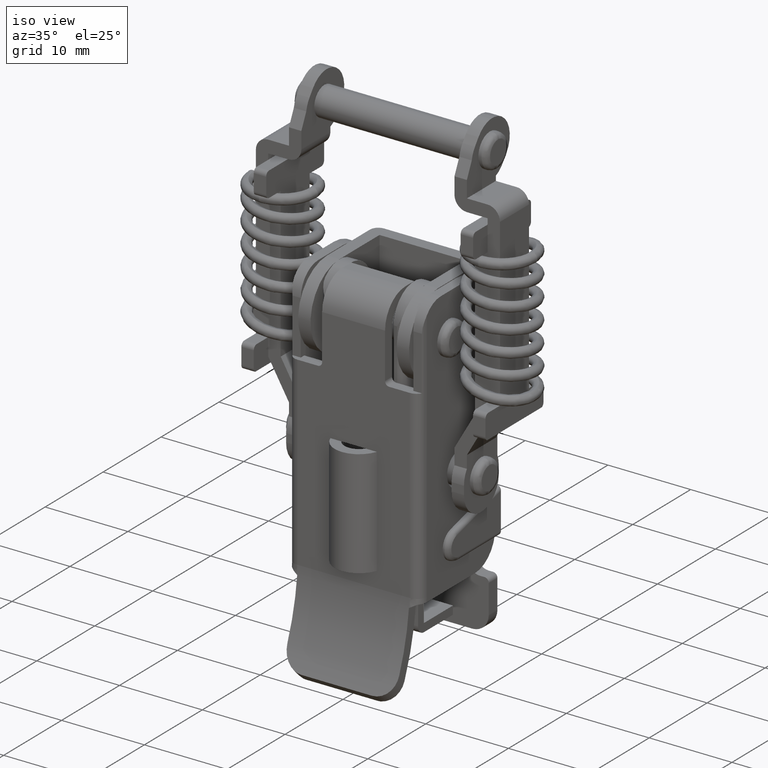
[diagram: clean part render]
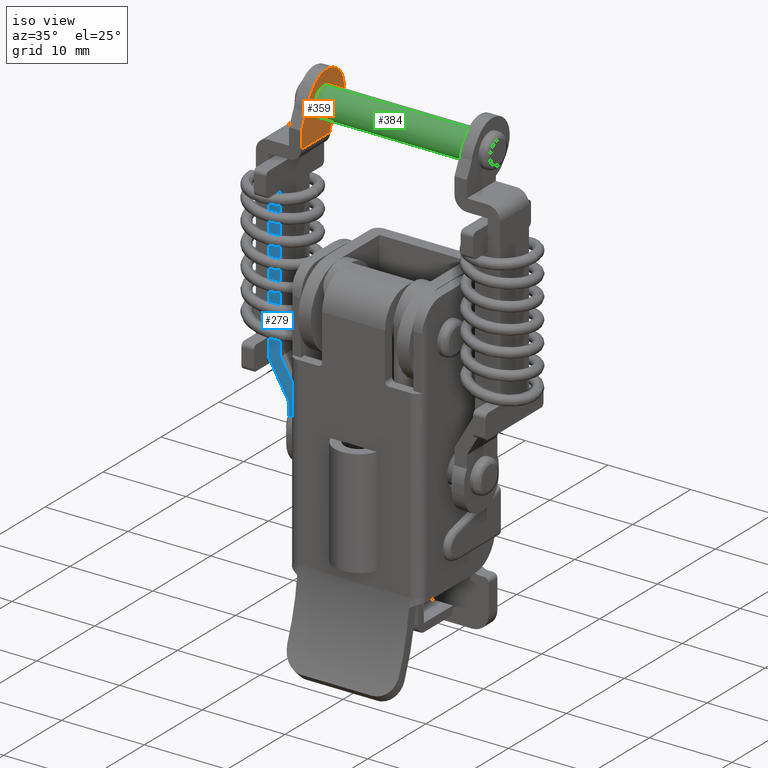
[diagram: same view with three faces highlighted in distinct colors, each labeled with its STEP entity id]
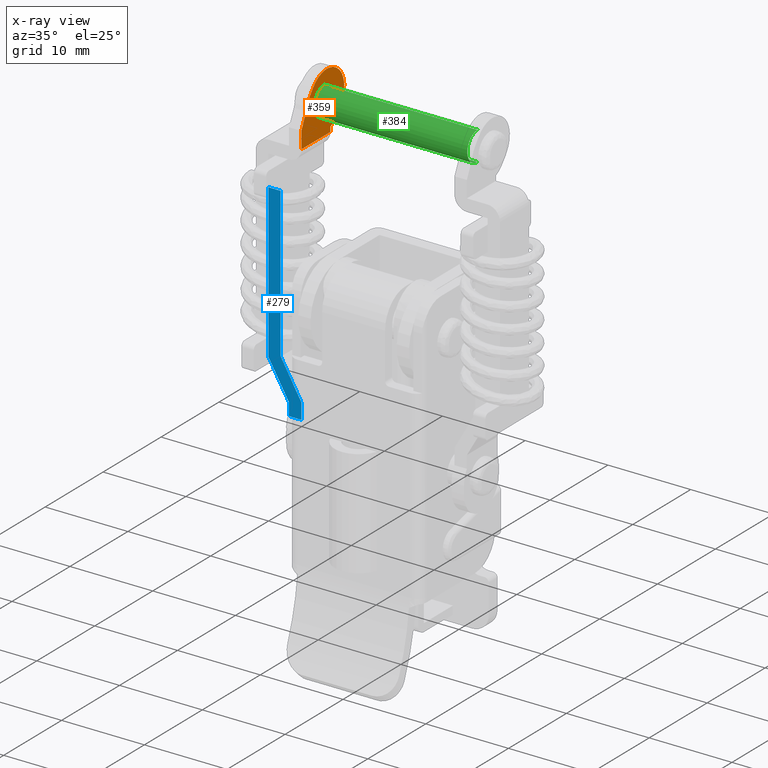
[diagram: x-ray of the same camera — body ghosted, the three highlighted faces saturated]
A machine part, iso view with three faces highlighted in distinct colors.
The next image is the same camera in x-ray (body ghosted, the three faces saturated) — at least one of them is partly hidden behind the body in this view.
Their STEP definitions:

[orange] entity #359 — the highlighted planar face has unit normal (-1, 0, 0).
#359=ADVANCED_FACE('',(#1546,#1547),#1545,.F.);
#1545=PLANE('',#4924);
#1546=FACE_OUTER_BOUND('',#4925,.T.);
#1547=FACE_BOUND('',#4926,.T.);
#4921=CARTESIAN_POINT('',(-9.25000000000E+00,-4.75682013095E+00,-4.51264886270E+00));
#4922=DIRECTION('',(-1.00000000000E+00,0.00000000000E+00,0.00000000000E+00));
#4923=DIRECTION('',(0.00000000000E+00,0.00000000000E+00,1.00000000000E+00));
#4924=AXIS2_PLACEMENT_3D('',#4921,#4922,#4923);
#4925=EDGE_LOOP('',(#8316,#8317,#8318,#8319,#8320,#8321,#8322,#8323,#8324,#8325,#8326));
#4926=EDGE_LOOP('',(#8327,#8328));
#8316=ORIENTED_EDGE('',*,*,#10080,.F.);
#8317=ORIENTED_EDGE('',*,*,#10121,.F.);
#8318=ORIENTED_EDGE('',*,*,#10108,.F.);
#8319=ORIENTED_EDGE('',*,*,#10103,.T.);
#8320=ORIENTED_EDGE('',*,*,#10101,.F.);
#8321=ORIENTED_EDGE('',*,*,#10097,.T.);
#8322=ORIENTED_EDGE('',*,*,#10122,.T.);
#8323=ORIENTED_EDGE('',*,*,#10123,.T.);
#8324=ORIENTED_EDGE('',*,*,#10094,.F.);
#8325=ORIENTED_EDGE('',*,*,#10090,.T.);
#8326=ORIENTED_EDGE('',*,*,#10088,.F.);
#8327=ORIENTED_EDGE('',*,*,#10124,.T.);
#8328=ORIENTED_EDGE('',*,*,#10125,.T.);
#10080=EDGE_CURVE('',#12426,#12433,#12434,.T.);
#10088=EDGE_CURVE('',#12433,#12487,#12488,.T.);
#10090=EDGE_CURVE('',#12500,#12487,#12501,.T.);
#10094=EDGE_CURVE('',#12500,#12527,#12528,.T.);
#10097=EDGE_CURVE('',#12548,#12540,#12549,.T.);
#10101=EDGE_CURVE('',#12548,#12575,#12576,.T.);
#10103=EDGE_CURVE('',#12588,#12575,#12589,.T.);
#10108=EDGE_CURVE('',#12588,#12622,#12623,.T.);
#10121=EDGE_CURVE('',#12622,#12426,#12706,.T.);
#10122=EDGE_CURVE('',#12540,#12712,#12713,.T.);
#10123=EDGE_CURVE('',#12712,#12527,#12719,.T.);
#10124=EDGE_CURVE('',#12725,#12726,#12727,.T.);
#10125=EDGE_CURVE('',#12726,#12725,#12733,.T.);
#12426=VERTEX_POINT('',#18505);
#12433=VERTEX_POINT('',#18510);
#12434=LINE('',#18511,#18512);
#12487=VERTEX_POINT('',#18541);
#12488=LINE('',#18542,#18543);
#12500=VERTEX_POINT('',#18548);
#12501=CIRCLE('',#18552,3.00000000000E+00);
#12527=VERTEX_POINT('',#18565);
#12528=LINE('',#18566,#18567);
#12540=VERTEX_POINT('',#18572);
#12548=VERTEX_POINT('',#18577);
#12549=CIRCLE('',#18581,3.00000000000E+00);
#12575=VERTEX_POINT('',#18594);
#12576=LINE('',#18595,#18596);
#12588=VERTEX_POINT('',#18601);
#12589=CIRCLE('',#18605,3.00000000000E+00);
#12622=VERTEX_POINT('',#18622);
#12623=LINE('',#18623,#18624);
#12706=LINE('',#18671,#18672);
#12712=VERTEX_POINT('',#18674);
#12713=LINE('',#18675,#18676);
#12719=CIRCLE('',#18681,3.00000000000E+00);
#12725=VERTEX_POINT('',#18682);
#12726=VERTEX_POINT('',#18683);
#12727=CIRCLE('',#18687,1.74999999999E+00);
#12733=CIRCLE('',#18691,1.74999999999E+00);
#18505=CARTESIAN_POINT('',(-9.24999700000E+00,-3.97084548674E+00,-3.80240805700E+00));
#18510=CARTESIAN_POINT('',(-9.25000000000E+00,-3.97098613539E+00,-1.78776197047E+00));
#18511=CARTESIAN_POINT('',(-9.25000000000E+00,-3.97084548674E+00,-3.80240805700E+00));
#18512=VECTOR('',#18513,2.01464609144E+00);
#18513=DIRECTION('',(0.00000000000E+00,-6.98130791695E-05,9.99999997563E-01));
#18541=CARTESIAN_POINT('',(-9.25000000000E+00,-3.12394639134E+00,2.61355118856E-02));
#18542=CARTESIAN_POINT('',(-9.25000000000E+00,-3.97098613539E+00,-1.78776197047E+00));
#18543=VECTOR('',#18544,2.00192417552E+00);
#18544=DIRECTION('',(0.00000000000E+00,4.23112800381E-01,9.06077015575E-01));
#18548=CARTESIAN_POINT('',(-9.25000000000E+00,-2.56375678982E+00,1.32077598000E+00));
#18549=CARTESIAN_POINT('',(-9.25000000000E+00,-1.67724221747E-01,-4.84501819331E-01));
#18550=DIRECTION('',(1.00000000000E+00,0.00000000000E+00,-0.00000000000E+00));
#18551=DIRECTION('',(-0.00000000000E+00,-0.00000000000E+00,-1.00000000000E+00));
#18552=AXIS2_PLACEMENT_3D('',#18549,#18550,#18551);
#18565=CARTESIAN_POINT('',(-9.25000000000E+00,-1.96199752338E+00,2.11945350268E+00));
#18566=CARTESIAN_POINT('',(-9.25000000000E+00,-2.56375678982E+00,1.32077598000E+00));
#18567=VECTOR('',#18568,9.99999999991E-01);
#18568=DIRECTION('',(0.00000000000E+00,6.01759266443E-01,7.98677522690E-01));
#18572=CARTESIAN_POINT('',(-9.25000000000E+00,7.25330890078E-01,3.30000000000E+00));
#18577=CARTESIAN_POINT('',(-9.25000000000E+00,2.83006761276E+00,-1.49110209598E+00));
#18578=CARTESIAN_POINT('',(-9.25000000000E+00,4.34035044691E-01,3.14175703351E-01));
#18579=DIRECTION('',(1.00000000000E+00,0.00000000000E+00,-0.00000000000E+00));
#18580=DIRECTION('',(-0.00000000000E+00,-0.00000000000E+00,-1.00000000000E+00));
#18581=AXIS2_PLACEMENT_3D('',#18578,#18579,#18580);
#18594=CARTESIAN_POINT('',(-9.25000000000E+00,2.22830834632E+00,-2.28977961866E+00));
#18595=CARTESIAN_POINT('',(-9.25000000000E+00,2.83006761276E+00,-1.49110209598E+00));
#18596=VECTOR('',#18597,9.99999999991E-01);
#18597=DIRECTION('',(0.00000000000E+00,-6.01759266444E-01,-7.98677522689E-01));
#18601=CARTESIAN_POINT('',(-9.25000000000E+00,1.02911494195E+00,-3.23542457656E+00));
#18602=CARTESIAN_POINT('',(-9.25000000000E+00,-1.67724221747E-01,-4.84501819331E-01));
#18603=DIRECTION('',(1.00000000000E+00,0.00000000000E+00,-0.00000000000E+00));
#18604=DIRECTION('',(-0.00000000000E+00,-0.00000000000E+00,-1.00000000000E+00));
#18605=AXIS2_PLACEMENT_3D('',#18602,#18603,#18604);
#18622=CARTESIAN_POINT('',(-9.24999700000E+00,1.02915452534E+00,-3.80240805700E+00));
#18623=CARTESIAN_POINT('',(-9.25000000000E+00,1.02911494195E+00,-3.23542457656E+00));
#18624=VECTOR('',#18625,5.66983481820E-01);
#18625=DIRECTION('',(0.00000000000E+00,6.98140223326E-05,-9.99999997563E-01));
#18671=CARTESIAN_POINT('',(-9.25000000000E+00,1.02915452534E+00,-3.80240805700E+00));
#18672=VECTOR('',#18673,5.00000001209E+00);
#18673=DIRECTION('',(0.00000000000E+00,-1.00000000000E+00,0.00000000000E+00));
#18674=CARTESIAN_POINT('',(-9.25000000000E+00,1.42739199303E-01,3.30000000000E+00));
#18675=CARTESIAN_POINT('',(-9.25000000000E+00,7.25330890078E-01,3.30000000000E+00));
#18676=VECTOR('',#18677,5.82591690776E-01);
#18677=DIRECTION('',(0.00000000000E+00,-1.00000000000E+00,0.00000000000E+00));
#18678=CARTESIAN_POINT('',(-9.25000000000E+00,4.34035044691E-01,3.14175703351E-01));
#18679=DIRECTION('',(1.00000000000E+00,0.00000000000E+00,-0.00000000000E+00));
#18680=DIRECTION('',(-0.00000000000E+00,-0.00000000000E+00,-1.00000000000E+00));
#18681=AXIS2_PLACEMENT_3D('',#18678,#18679,#18680);
#18682=CARTESIAN_POINT('',(-9.25000000000E+00,0.00000000000E+00,1.74999999999E+00));
#18683=CARTESIAN_POINT('',(-9.25000000000E+00,7.40148683083E-17,-1.74999999999E+00));
#18684=CARTESIAN_POINT('',(-9.25000000000E+00,0.00000000000E+00,0.00000000000E+00));
#18685=DIRECTION('',(-1.00000000000E+00,0.00000000000E+00,0.00000000000E+00));
#18686=DIRECTION('',(0.00000000000E+00,-1.22460635382E-16,1.00000000000E+00));
#18687=AXIS2_PLACEMENT_3D('',#18684,#18685,#18686);
#18688=CARTESIAN_POINT('',(-9.25000000000E+00,0.00000000000E+00,0.00000000000E+00));
#18689=DIRECTION('',(-1.00000000000E+00,0.00000000000E+00,0.00000000000E+00));
#18690=DIRECTION('',(0.00000000000E+00,-1.22460635382E-16,1.00000000000E+00));
#18691=AXIS2_PLACEMENT_3D('',#18688,#18689,#18690);

[blue] entity #279 — the highlighted planar face has unit normal (-0, -1, -0.0001).
#279=ADVANCED_FACE('',(#742),#741,.T.);
#741=PLANE('',#4436);
#742=FACE_OUTER_BOUND('',#4437,.T.);
#4433=CARTESIAN_POINT('',(-1.36500000000E+01,-2.50198507420E+00,2.84339941581E+01));
#4434=DIRECTION('',(0.00000000000E+00,-9.99999997563E-01,-6.98132062351E-05));
#4435=DIRECTION('',(0.00000000000E+00,6.98132062351E-05,-9.99999997563E-01));
#4436=AXIS2_PLACEMENT_3D('',#4433,#4434,#4435);
#4437=EDGE_LOOP('',(#7897,#7898,#7899,#7900,#7901,#7902,#7903,#7904));
#7897=ORIENTED_EDGE('',*,*,#9859,.T.);
#7898=ORIENTED_EDGE('',*,*,#9900,.F.);
#7899=ORIENTED_EDGE('',*,*,#9894,.T.);
#7900=ORIENTED_EDGE('',*,*,#9887,.T.);
#7901=ORIENTED_EDGE('',*,*,#9882,.T.);
#7902=ORIENTED_EDGE('',*,*,#9901,.T.);
#7903=ORIENTED_EDGE('',*,*,#9868,.T.);
#7904=ORIENTED_EDGE('',*,*,#9865,.T.);
#9859=EDGE_CURVE('',#10951,#10944,#10952,.T.);
#9865=EDGE_CURVE('',#10992,#10951,#10993,.T.);
#9868=EDGE_CURVE('',#11012,#10992,#11013,.T.);
#9882=EDGE_CURVE('',#11110,#11103,#11111,.T.);
#9887=EDGE_CURVE('',#11144,#11110,#11145,.T.);
#9894=EDGE_CURVE('',#11190,#11144,#11191,.T.);
#9900=EDGE_CURVE('',#11190,#10944,#11230,.T.);
#9901=EDGE_CURVE('',#11103,#11012,#11236,.T.);
#10944=VERTEX_POINT('',#17626);
#10951=VERTEX_POINT('',#17630);
#10952=LINE('',#17631,#17632);
#10992=VERTEX_POINT('',#17654);
#10993=LINE('',#17655,#17656);
#11012=VERTEX_POINT('',#17665);
#11013=LINE('',#17666,#17667);
#11103=VERTEX_POINT('',#17724);
#11110=VERTEX_POINT('',#17729);
#11111=LINE('',#17730,#17731);
#11144=VERTEX_POINT('',#17750);
#11145=LINE('',#17751,#17752);
#11190=VERTEX_POINT('',#17776);
#11191=LINE('',#17777,#17778);
#11230=LINE('',#17800,#17801);
#11236=LINE('',#17803,#17804);
#17626=CARTESIAN_POINT('',(-1.17500000000E+01,-2.50181513707E+00,2.59998254036E+01));
#17630=CARTESIAN_POINT('',(-1.17500000000E+01,-2.50055166453E+00,7.90192378800E+00));
#17631=CARTESIAN_POINT('',(-1.17500000000E+01,-2.50055166453E+00,7.90192378800E+00));
#17632=VECTOR('',#17633,1.80979016597E+01);
#17633=DIRECTION('',(0.00000000000E+00,-6.98132062351E-05,9.99999997563E-01));
#17654=CARTESIAN_POINT('',(-9.25000000000E+00,-2.50024936448E+00,3.57179676900E+00));
#17655=CARTESIAN_POINT('',(-9.25000000000E+00,-2.50024936448E+00,3.57179676900E+00));
#17656=VECTOR('',#17657,5.00000000921E+00);
#17657=DIRECTION('',(-4.99999999079E-01,-6.04600101564E-05,8.66025402205E-01));
#17665=CARTESIAN_POINT('',(-9.25000000000E+00,-2.50011576581E+00,1.65813785835E+00));
#17666=CARTESIAN_POINT('',(-9.25000000000E+00,-2.50011576581E+00,1.65813785835E+00));
#17667=VECTOR('',#17668,1.91365891531E+00);
#17668=DIRECTION('',(0.00000000000E+00,-6.98132062350E-05,9.99999997563E-01));
#17724=CARTESIAN_POINT('',(-1.07500000000E+01,-2.50011576581E+00,1.65813785835E+00));
#17729=CARTESIAN_POINT('',(-1.07500000000E+01,-2.50022130489E+00,3.16987298100E+00));
#17730=CARTESIAN_POINT('',(-1.07500000000E+01,-2.50022130489E+00,3.16987298100E+00));
#17731=VECTOR('',#17732,1.51173512633E+00);
#17732=DIRECTION('',(0.00000000000E+00,6.98132062349E-05,-9.99999997563E-01));
#17750=CARTESIAN_POINT('',(-1.32500000000E+01,-2.50052360494E+00,7.50000000000E+00));
#17751=CARTESIAN_POINT('',(-1.32500000000E+01,-2.50052360494E+00,7.50000000000E+00));
#17752=VECTOR('',#17753,5.00000000921E+00);
#17753=DIRECTION('',(4.99999999079E-01,6.04600101564E-05,-8.66025402205E-01));
#17776=CARTESIAN_POINT('',(-1.32500000000E+01,-2.50181513707E+00,2.59998254036E+01));
#17777=CARTESIAN_POINT('',(-1.32500000000E+01,-2.50181513707E+00,2.59998254036E+01));
#17778=VECTOR('',#17779,1.84998254486E+01);
#17779=DIRECTION('',(0.00000000000E+00,6.98132062351E-05,-9.99999997563E-01));
#17800=CARTESIAN_POINT('',(-1.32500000000E+01,-2.50181513707E+00,2.59998254036E+01));
#17801=VECTOR('',#17802,1.50000000000E+00);
#17802=DIRECTION('',(1.00000000000E+00,0.00000000000E+00,0.00000000000E+00));
#17803=CARTESIAN_POINT('',(-1.07500000000E+01,-2.50011576581E+00,1.65813785835E+00));
#17804=VECTOR('',#17805,1.50000000000E+00);
#17805=DIRECTION('',(1.00000000000E+00,0.00000000000E+00,0.00000000000E+00));

[green] entity #384 — the highlighted cylindrical surface (edge-blend (fillet) strip) has radius 1.75 mm, axis along (1, 0, 0).
#384=ADVANCED_FACE('',(#1798),#1797,.T.);
#1797=CYLINDRICAL_SURFACE('',#5051,1.74999999999E+00);
#1798=FACE_OUTER_BOUND('',#5052,.T.);
#5048=CARTESIAN_POINT('',(0.00000000000E+00,0.00000000000E+00,0.00000000000E+00));
#5049=DIRECTION('',(1.00000000000E+00,-0.00000000000E+00,-0.00000000000E+00));
#5050=DIRECTION('',(-0.00000000000E+00,-0.00000000000E+00,-1.00000000000E+00));
#5051=AXIS2_PLACEMENT_3D('',#5048,#5049,#5050);
#5052=EDGE_LOOP('',(#8455,#8456,#8457,#8458));
#8455=ORIENTED_EDGE('',*,*,#10125,.F.);
#8456=ORIENTED_EDGE('',*,*,#10163,.T.);
#8457=ORIENTED_EDGE('',*,*,#10030,.T.);
#8458=ORIENTED_EDGE('',*,*,#10164,.F.);
#10030=EDGE_CURVE('',#12093,#12094,#12095,.T.);
#10125=EDGE_CURVE('',#12726,#12725,#12733,.T.);
#10163=EDGE_CURVE('',#12726,#12093,#12978,.T.);
#10164=EDGE_CURVE('',#12725,#12094,#12984,.T.);
#12093=VERTEX_POINT('',#18300);
#12094=VERTEX_POINT('',#18301);
#12095=CIRCLE('',#18305,1.74999999999E+00);
#12725=VERTEX_POINT('',#18682);
#12726=VERTEX_POINT('',#18683);
#12733=CIRCLE('',#18691,1.74999999999E+00);
#12978=(BOUNDED_CURVE() B_SPLINE_CURVE(1,(#18827,#18828),.UNSPECIFIED.,.F.,.F.) B_SPLINE_CURVE_WITH_KNOTS((2,2),(8.33333328360E-02,9.16666665505E-01),.UNSPECIFIED.) CURVE() GEOMETRIC_REPRESENTATION_ITEM() RATIONAL_B_SPLINE_CURVE((1.00000000000E+00,1.00000000000E+00)) REPRESENTATION_ITEM('') );
#12984=(BOUNDED_CURVE() B_SPLINE_CURVE(1,(#18829,#18830),.UNSPECIFIED.,.F.,.F.) B_SPLINE_CURVE_WITH_KNOTS((2,2),(8.33333333333E-02,9.16666666667E-01),.UNSPECIFIED.) CURVE() GEOMETRIC_REPRESENTATION_ITEM() RATIONAL_B_SPLINE_CURVE((7.50000000000E-01,7.50000000000E-01)) REPRESENTATION_ITEM('') );
#18300=CARTESIAN_POINT('',(9.25000000000E+00,7.40148683083E-17,-1.74999999999E+00));
#18301=CARTESIAN_POINT('',(9.25000000000E+00,0.00000000000E+00,1.74999999999E+00));
#18302=CARTESIAN_POINT('',(9.25000000000E+00,0.00000000000E+00,0.00000000000E+00));
#18303=DIRECTION('',(-1.00000000000E+00,0.00000000000E+00,0.00000000000E+00));
#18304=DIRECTION('',(0.00000000000E+00,-1.22460635382E-16,1.00000000000E+00));
#18305=AXIS2_PLACEMENT_3D('',#18302,#18303,#18304);
#18682=CARTESIAN_POINT('',(-9.25000000000E+00,0.00000000000E+00,1.74999999999E+00));
#18683=CARTESIAN_POINT('',(-9.25000000000E+00,7.40148683083E-17,-1.74999999999E+00));
#18688=CARTESIAN_POINT('',(-9.25000000000E+00,0.00000000000E+00,0.00000000000E+00));
#18689=DIRECTION('',(-1.00000000000E+00,0.00000000000E+00,0.00000000000E+00));
#18690=DIRECTION('',(0.00000000000E+00,-1.22460635382E-16,1.00000000000E+00));
#18691=AXIS2_PLACEMENT_3D('',#18688,#18689,#18690);
#18827=CARTESIAN_POINT('',(-9.25000001104E+00,0.00000000000E+00,-1.74999999999E+00));
#18828=CARTESIAN_POINT('',(9.24999997420E+00,0.00000000000E+00,-1.74999999999E+00));
#18829=CARTESIAN_POINT('',(-9.25000000000E+00,0.00000000000E+00,1.74999999999E+00));
#18830=CARTESIAN_POINT('',(9.25000000000E+00,0.00000000000E+00,1.74999999999E+00));